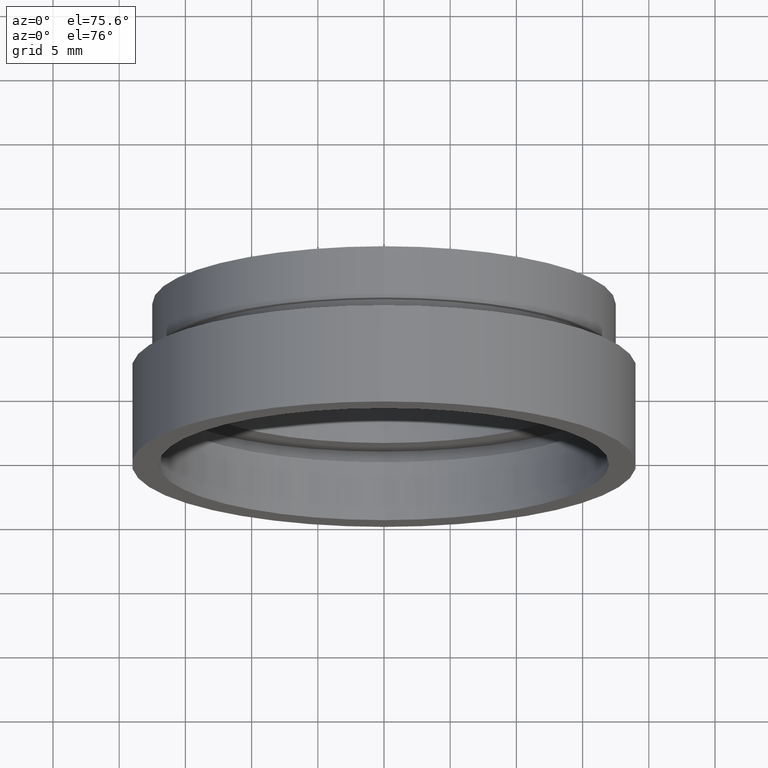
[diagram: clean part render]
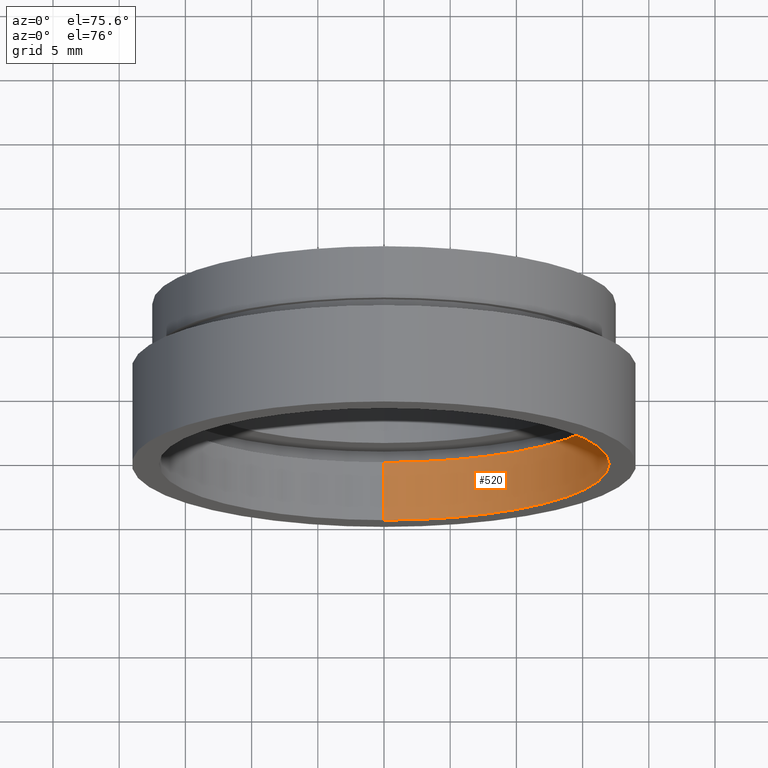
[diagram: same view with one face highlighted and labeled with its STEP entity id]
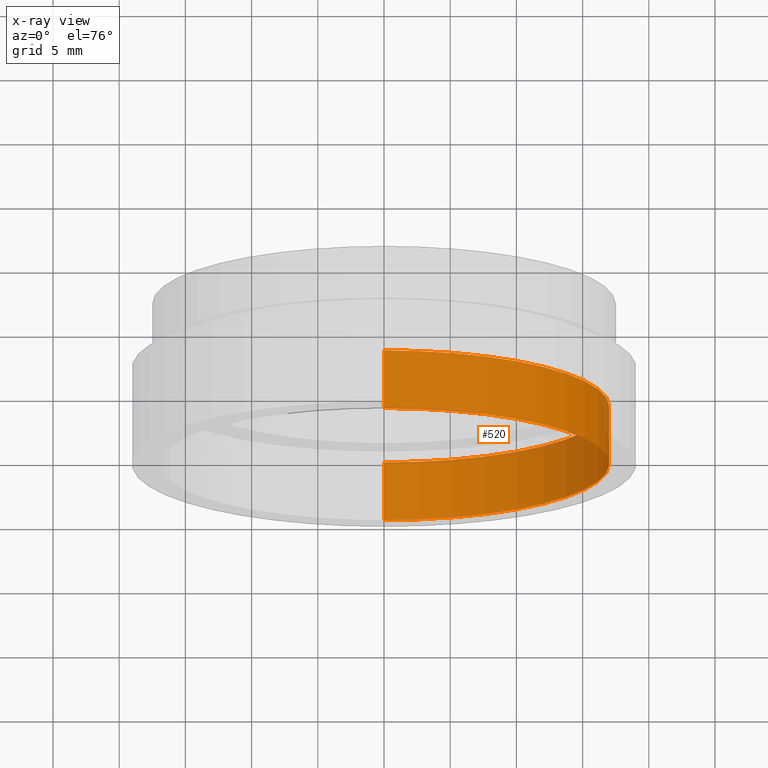
[diagram: x-ray of the same camera — body ghosted, the highlighted face saturated]
A machine part, auxiliary view. The second image highlights one B-rep face of the part: STEP entity #520.
The next image is the same camera in x-ray: the body ghosted, the highlighted face saturated — about 1% of this face is hidden behind the body in this view.
In plain terms, the highlighted cylindrical surface (partial cylindrical patch) has radius 17 mm, axis along (-0, 1, -0).
Its self-contained STEP definition (entity closure, byte-faithful):
#16 = DIRECTION ( 'NONE',  ( -0.0000000000000000000, 1.000000000000000000, -0.0000000000000000000 ) ) ;
#38 = DIRECTION ( 'NONE',  ( -0.0000000000000000000, 1.000000000000000000, -0.0000000000000000000 ) ) ;
#52 = CARTESIAN_POINT ( 'NONE',  ( 0.0000000000000000000, 161.3761669434274500, 17.00000000000002100 ) ) ;
#64 = DIRECTION ( 'NONE',  ( -0.0000000000000000000, 1.000000000000000000, -0.0000000000000000000 ) ) ;
#103 = DIRECTION ( 'NONE',  ( 0.0000000000000000000, 0.0000000000000000000, 1.000000000000000000 ) ) ;
#104 = DIRECTION ( 'NONE',  ( 0.0000000000000000000, 0.0000000000000000000, 1.000000000000000000 ) ) ;
#126 = CARTESIAN_POINT ( 'NONE',  ( 0.0000000000000000000, -2.775557561562891400E-014, 17.00000000000002100 ) ) ;
#145 = AXIS2_PLACEMENT_3D ( 'NONE', #501, #16, #104 ) ;
#177 = VERTEX_POINT ( 'NONE', #468 ) ;
#206 = CARTESIAN_POINT ( 'NONE',  ( 2.081899558550503000E-015, -2.775557561562891400E-014, -17.00000000000002100 ) ) ;
#216 = CIRCLE ( 'NONE', #523, 17.00000000000002100 ) ;
#259 = VERTEX_POINT ( 'NONE', #473 ) ;
#266 = ORIENTED_EDGE ( 'NONE', *, *, #515, .T. ) ;
#274 = CYLINDRICAL_SURFACE ( 'NONE', #145, 17.00000000000002100 ) ;
#280 = DIRECTION ( 'NONE',  ( 0.0000000000000000000, 0.0000000000000000000, 1.000000000000000000 ) ) ;
#315 = EDGE_CURVE ( 'NONE', #320, #573, #216, .T. ) ;
#320 = VERTEX_POINT ( 'NONE', #126 ) ;
#330 = CARTESIAN_POINT ( 'NONE',  ( 0.0000000000000000000, -2.775557561562891400E-014, 0.0000000000000000000 ) ) ;
#331 = AXIS2_PLACEMENT_3D ( 'NONE', #499, #492, #103 ) ;
#359 = CARTESIAN_POINT ( 'NONE',  ( 2.081899558550503000E-015, 161.3761669434274500, -17.00000000000002100 ) ) ;
#384 = LINE ( 'NONE', #359, #579 ) ;
#396 = DIRECTION ( 'NONE',  ( -0.0000000000000000000, 1.000000000000000000, -0.0000000000000000000 ) ) ;
#408 = FACE_OUTER_BOUND ( 'NONE', #535, .T. ) ;
#413 = ORIENTED_EDGE ( 'NONE', *, *, #315, .F. ) ;
#416 = CIRCLE ( 'NONE', #331, 17.00000000000002500 ) ;
#430 = EDGE_CURVE ( 'NONE', #320, #259, #619, .T. ) ;
#468 = CARTESIAN_POINT ( 'NONE',  ( 2.081899558550503400E-015, 4.499999999999976000, -17.00000000000002500 ) ) ;
#473 = CARTESIAN_POINT ( 'NONE',  ( 0.0000000000000000000, 4.499999999999976000, 17.00000000000002500 ) ) ;
#488 = ORIENTED_EDGE ( 'NONE', *, *, #610, .F. ) ;
#492 = DIRECTION ( 'NONE',  ( -0.0000000000000000000, 1.000000000000000000, -0.0000000000000000000 ) ) ;
#496 = VECTOR ( 'NONE', #396, 1000.000000000000000 ) ;
#499 = CARTESIAN_POINT ( 'NONE',  ( 0.0000000000000000000, 4.499999999999976000, 0.0000000000000000000 ) ) ;
#501 = CARTESIAN_POINT ( 'NONE',  ( 0.0000000000000000000, 161.3761669434274500, 0.0000000000000000000 ) ) ;
#515 = EDGE_CURVE ( 'NONE', #259, #177, #416, .T. ) ;
#520 = ADVANCED_FACE ( 'NONE', ( #408 ), #274, .F. ) ;
#523 = AXIS2_PLACEMENT_3D ( 'NONE', #330, #38, #280 ) ;
#535 = EDGE_LOOP ( 'NONE', ( #488, #413, #567, #266 ) ) ;
#567 = ORIENTED_EDGE ( 'NONE', *, *, #430, .T. ) ;
#573 = VERTEX_POINT ( 'NONE', #206 ) ;
#579 = VECTOR ( 'NONE', #64, 1000.000000000000000 ) ;
#610 = EDGE_CURVE ( 'NONE', #573, #177, #384, .T. ) ;
#619 = LINE ( 'NONE', #52, #496 ) ;